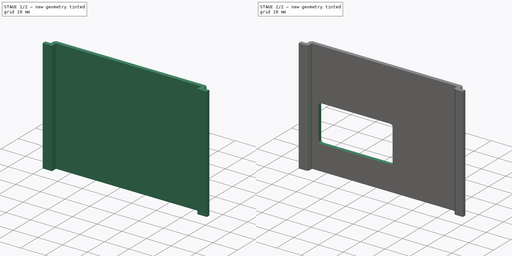
[diagram: build sequence overview — one tinted view per stage of 2, left to right]
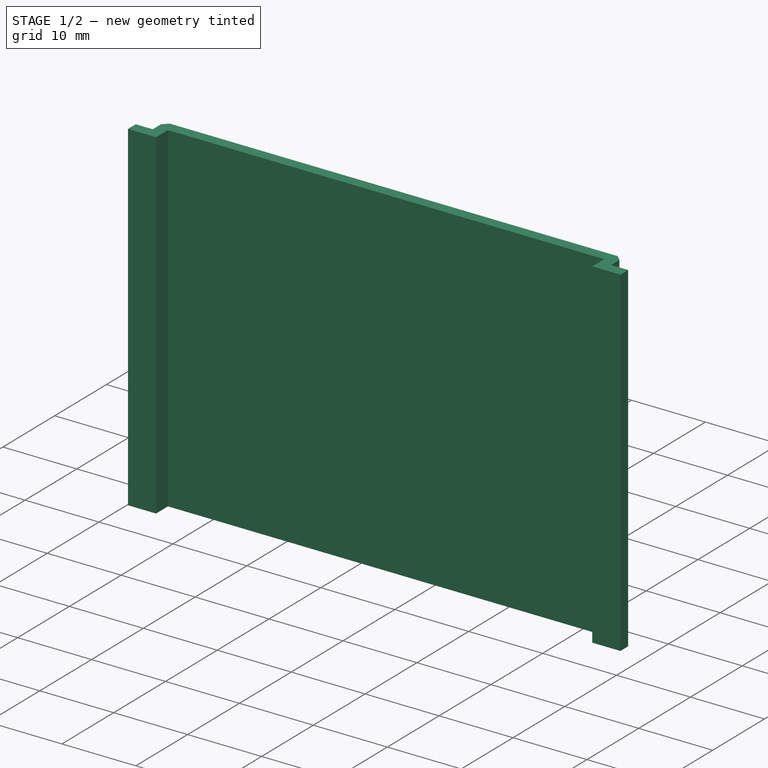
[diagram: stage 1 of 2 — iso view after this stage's code; geometry added in this stage tinted green]
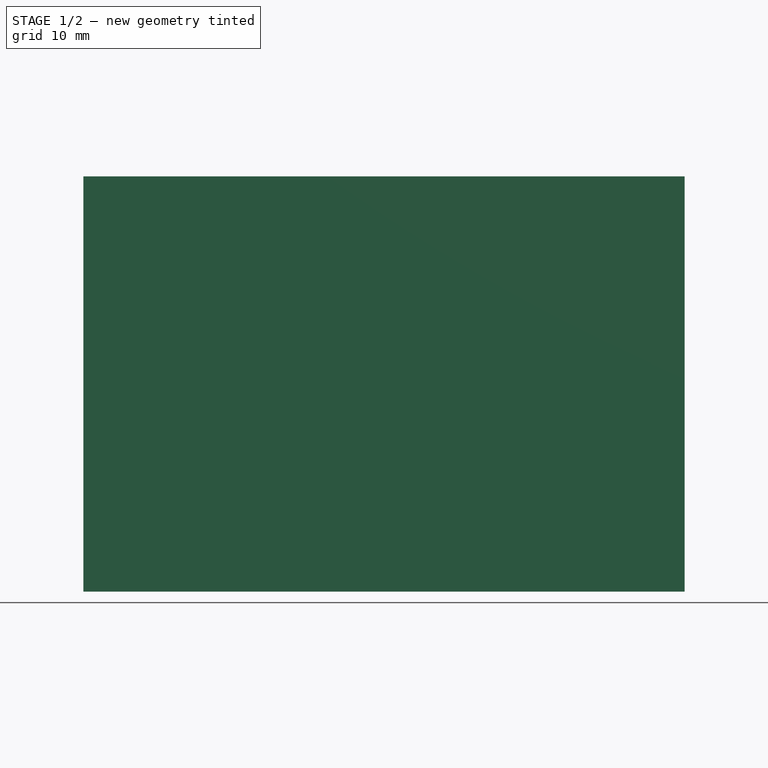
[diagram: stage 1 of 2 — front view after this stage's code; geometry added in this stage tinted green]
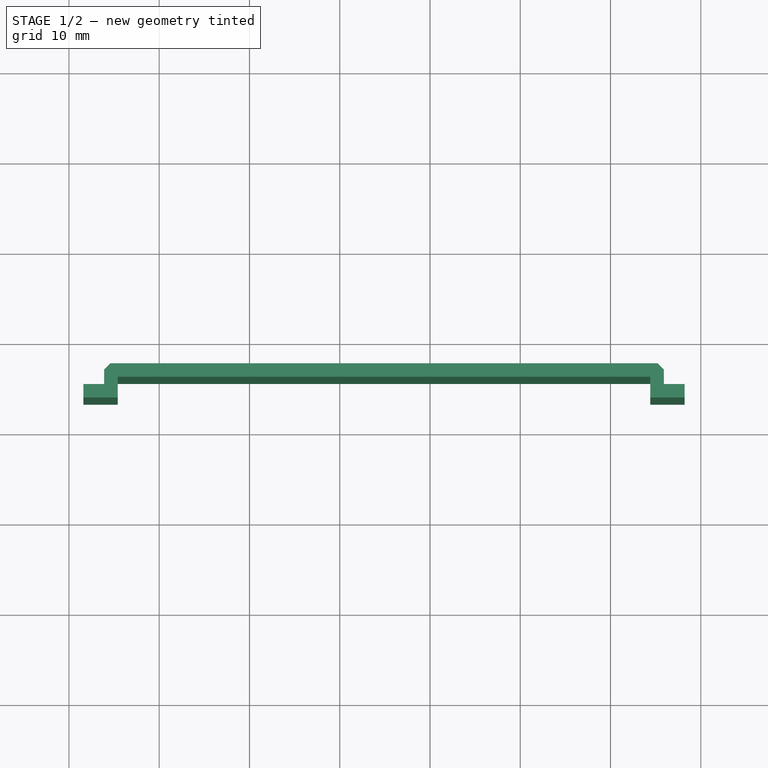
[diagram: stage 1 of 2 — top view after this stage's code; geometry added in this stage tinted green]
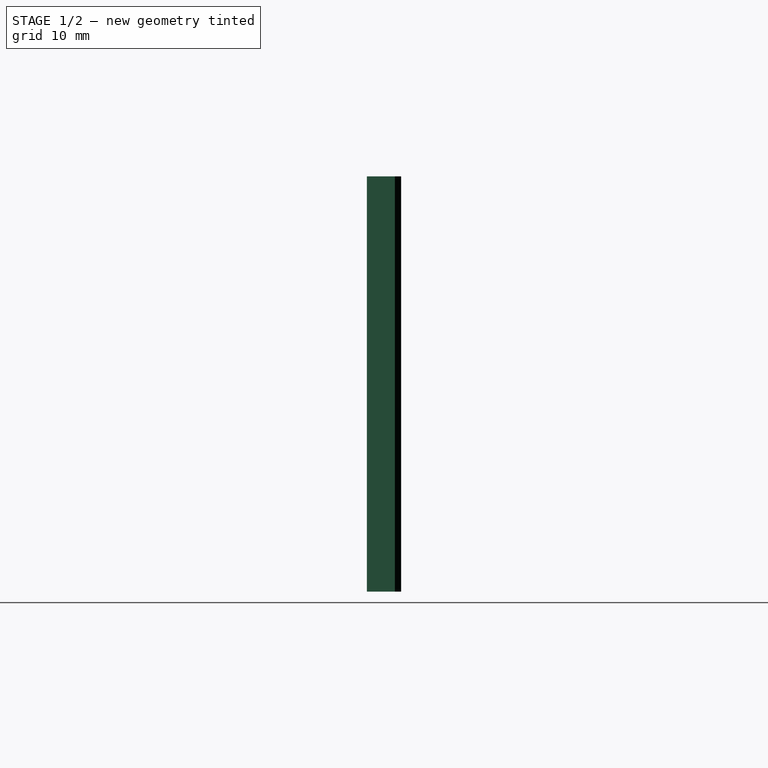
[diagram: stage 1 of 2 — right view after this stage's code; geometry added in this stage tinted green]
FCSTD DOCUMENT  (FreeCAD 0.19R24267 +148 (Git))
Label: LiulinDetectorPlate
License: All rights reserved
LicenseURL: http://en.wikipedia.org/wiki/All_rights_reserved
objects: Sketcher::SketchObject×2, PartDesign::Pad×1, PartDesign::Chamfer×1, PartDesign::Fillet×1, PartDesign::Pocket×1, PartDesign::Body×1
note: 11 computed .brp shape members not serialized (recipe doc carries the construction recipe); baked Part::Feature solids carry a one-line shape summary decoded from their .brp

FEATURE [Sketcher::SketchObject] Sketch
  FullyConstrained = false
  MapMode = 5
  Support = -> [XY_Plane]
  sketch-geometry (12):
    g0: LineSegment StartX=-26.096 StartY=27.1074 StartZ=0 EndX=35.904 EndY=27.1074 EndZ=0
    g1: LineSegment StartX=35.904 StartY=27.1074 StartZ=0 EndX=35.904 EndY=24.8074 EndZ=0
    g2: LineSegment StartX=35.904 StartY=24.8074 StartZ=0 EndX=38.204 EndY=24.8074 EndZ=0
    g3: LineSegment StartX=38.204 StartY=24.8074 StartZ=0 EndX=38.204 EndY=23.3074 EndZ=0
    g4: LineSegment StartX=38.204 StartY=23.3074 StartZ=0 EndX=34.404 EndY=23.3074 EndZ=0
    g5: LineSegment StartX=34.404 StartY=23.3074 StartZ=0 EndX=34.404 EndY=25.6074 EndZ=0
    g6: LineSegment StartX=34.404 StartY=25.6074 StartZ=0 EndX=-24.596 EndY=25.6074 EndZ=0
    g7: LineSegment StartX=-24.596 StartY=25.6074 StartZ=0 EndX=-24.596 EndY=23.3074 EndZ=0
    g8: LineSegment StartX=-24.596 StartY=23.3074 StartZ=0 EndX=-28.396 EndY=23.3074 EndZ=0
    g9: LineSegment StartX=-28.396 StartY=23.3074 StartZ=0 EndX=-28.396 EndY=24.8074 EndZ=0
    g10: LineSegment StartX=-28.396 StartY=24.8074 StartZ=0 EndX=-26.096 EndY=24.8074 EndZ=0
    g11: LineSegment StartX=-26.096 StartY=24.8074 StartZ=0 EndX=-26.096 EndY=27.1074 EndZ=0
  constraints (34):
    c: Horizontal(g0)
    c: Coincident(g0,g1)
    c: Vertical(g1)
    c: Coincident(g1,g2)
    c: Horizontal(g2)
    c: Coincident(g2,g3)
    c: Vertical(g3)
    c: Coincident(g3,g4)
    c: Horizontal(g4)
    c: Coincident(g4,g5)
    c: Vertical(g5)
    c: Coincident(g5,g6)
    c: Horizontal(g6)
    c: Coincident(g6,g7)
    c: Vertical(g7)
    c: Coincident(g7,g8)
    c: Horizontal(g8)
    c: Coincident(g8,g9)
    c: Coincident(g9,g10)
    c: Horizontal(g10)
    c: Coincident(g10,g11)
    c: Coincident(g11,g0)
    c: Vertical(g11)
    c: DistanceX(g0,g0) = 62
    c: DistanceX(g6,g5) = 59
    c: Vertical(g9)
    c: DistanceY(g6,g0) = 1.5
    c: DistanceX(g10,g7) = 1.5
    c: DistanceY(g8,g9) = 1.5
    c: DistanceY(g3,g2) = 1.5
    c: DistanceX(g8,g7) = 3.8
    c: DistanceX(g4,g3) = 3.8
    c: DistanceY(g3,g0) = 3.8
    c: DistanceY(g7,g0) = 3.8
FEATURE [PartDesign::Pad] Pad
  Direction = (1,1,1)
  Length = 46
  Length2 = 100
  Profile = -> Sketch
  Type = 0
FEATURE [PartDesign::Chamfer] Chamfer
  Angle = 45
  Base = -> Pad [Edge2,Edge1]
  BaseFeature = -> Pad
  ChamferType = 0
  FlipDirection = false
  Size = 0.7
  Size2 = 1
  SupportTransform = false
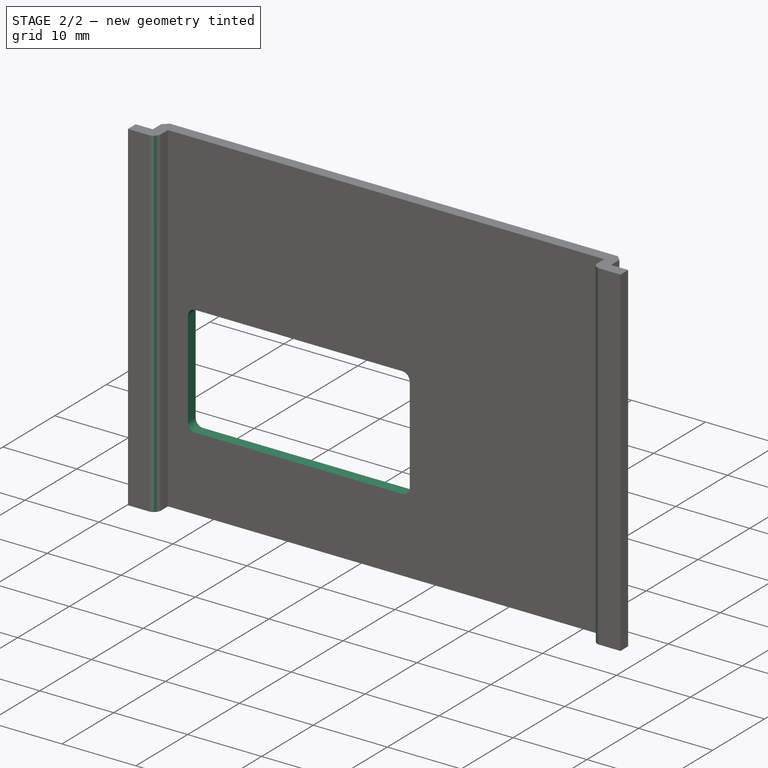
[diagram: stage 2 of 2 — iso view after this stage's code; geometry added in this stage tinted green]
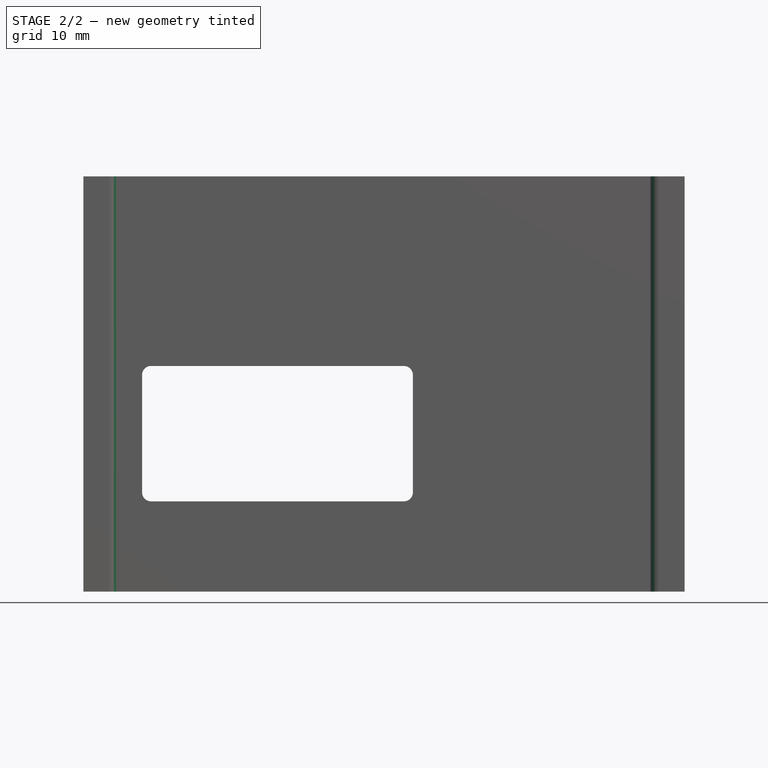
[diagram: stage 2 of 2 — front view after this stage's code; geometry added in this stage tinted green]
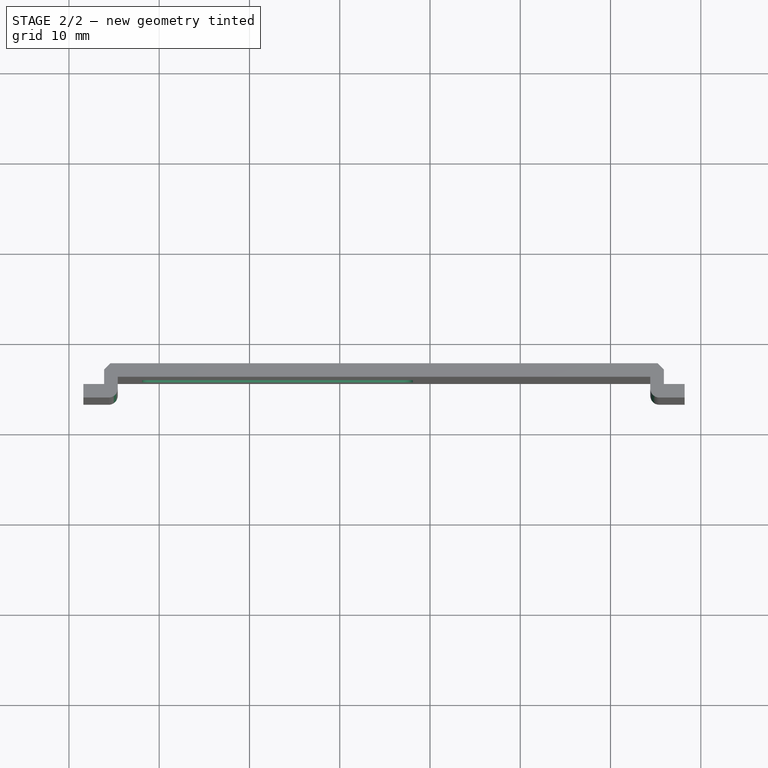
[diagram: stage 2 of 2 — top view after this stage's code; geometry added in this stage tinted green]
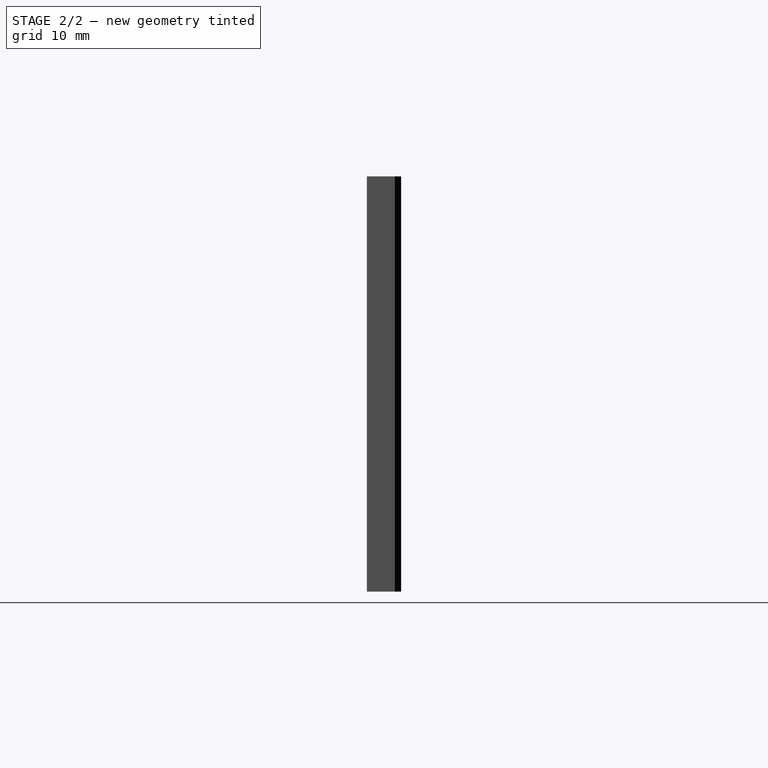
[diagram: stage 2 of 2 — right view after this stage's code; geometry added in this stage tinted green]
FEATURE [PartDesign::Fillet] Fillet
  Base = -> Chamfer [Edge39,Edge40]
  BaseFeature = -> Chamfer
  Radius = 1
  SupportTransform = false
FEATURE [Sketcher::SketchObject] Sketch001
  ExternalGeometry = -> [Fillet]
  FullyConstrained = true
  MapMode = 5
  Placement = pos=(0,27.1074,0) rot=(0,0.707107,0.707107;3.14159rad)
  Support = -> [Fillet]
  sketch-geometry (8):
    g0: LineSegment StartX=20.896 StartY=25 StartZ=0 EndX=-7.10405 EndY=25 EndZ=0
    g1: LineSegment StartX=-8.10405 StartY=24 StartZ=0 EndX=-8.10405 EndY=11 EndZ=0
    g2: LineSegment StartX=-7.10405 StartY=10 StartZ=0 EndX=20.896 EndY=10 EndZ=0
    g3: LineSegment StartX=21.896 StartY=11 StartZ=0 EndX=21.896 EndY=24 EndZ=0
    g4: ArcOfCircle CenterX=-7.10405 CenterY=24 CenterZ=0 NormalX=0 NormalY=0 NormalZ=1 AngleXU=0 Radius=1 StartAngle=1.5708 EndAngle=3.14159
    g5: ArcOfCircle CenterX=20.896 CenterY=24 CenterZ=0 NormalX=0 NormalY=0 NormalZ=1 AngleXU=0 Radius=1 StartAngle=1.7e-15 EndAngle=1.5708
    g6: ArcOfCircle CenterX=20.896 CenterY=11 CenterZ=0 NormalX=0 NormalY=0 NormalZ=1 AngleXU=0 Radius=1 StartAngle=4.71239 EndAngle=6.28319
    g7: ArcOfCircle CenterX=-7.10405 CenterY=11 CenterZ=0 NormalX=0 NormalY=0 NormalZ=1 AngleXU=0 Radius=1 StartAngle=3.14159 EndAngle=4.71239
  constraints (20):
    c: Horizontal(g0)
    c: Horizontal(g2)
    c: Vertical(g1)
    c: Vertical(g3)
    c: Tangent(g0,g4) = -1.5708
    c: Tangent(g1,g4) = -1.5708
    c: Tangent(g0,g5) = -1.5708
    c: Tangent(g3,g5) = -1.5708
    c: Tangent(g3,g6) = -1.5708
    c: Tangent(g2,g6) = -1.5708
    c: Tangent(g1,g7) = -1.5708
    c: Tangent(g2,g7) = -1.5708
    c: Radius(g4) = 1
    c: Equal(g4,g5)
    c: Equal(g5,g6)
    c: Equal(g6,g7)
    c: DistanceY(g2,g0) = 15
    c: DistanceX(g1,g3) = 30
    c: DistanceX(g3,g-3) = 6.5
    c: Distance(g2,g-4) = 36
FEATURE [PartDesign::Pocket] Pocket
  BaseFeature = -> Fillet
  Length = 2
  Length2 = 100
  Profile = -> Sketch001
  Type = 0
FEATURE [PartDesign::Body] Body
  Group = -> [Sketch,Pad,Chamfer,Fillet,Sketch001,Pocket]
  Origin = -> Origin
  Tip = -> Pocket
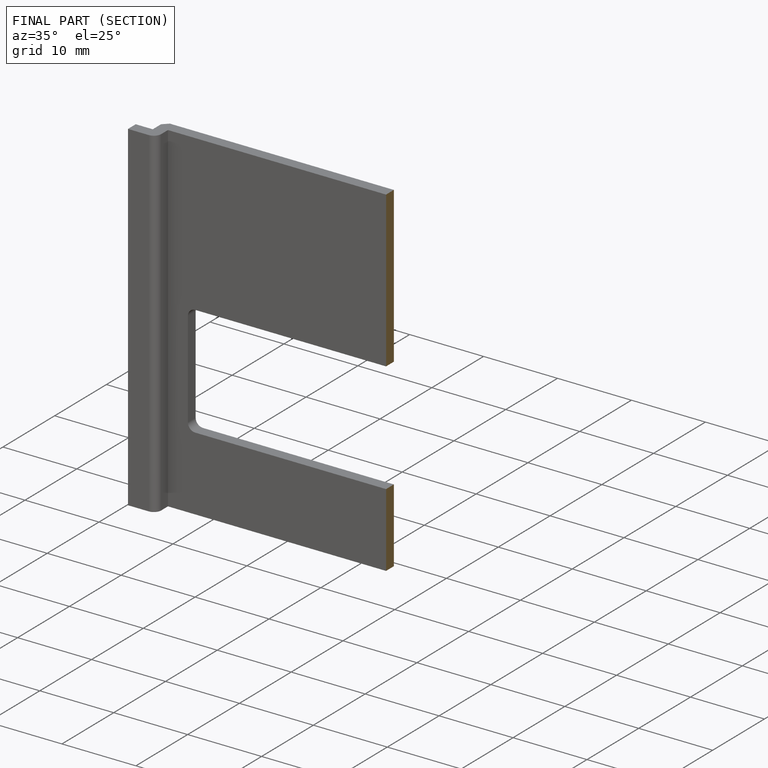
[diagram: finished part — half-section view (interior)]
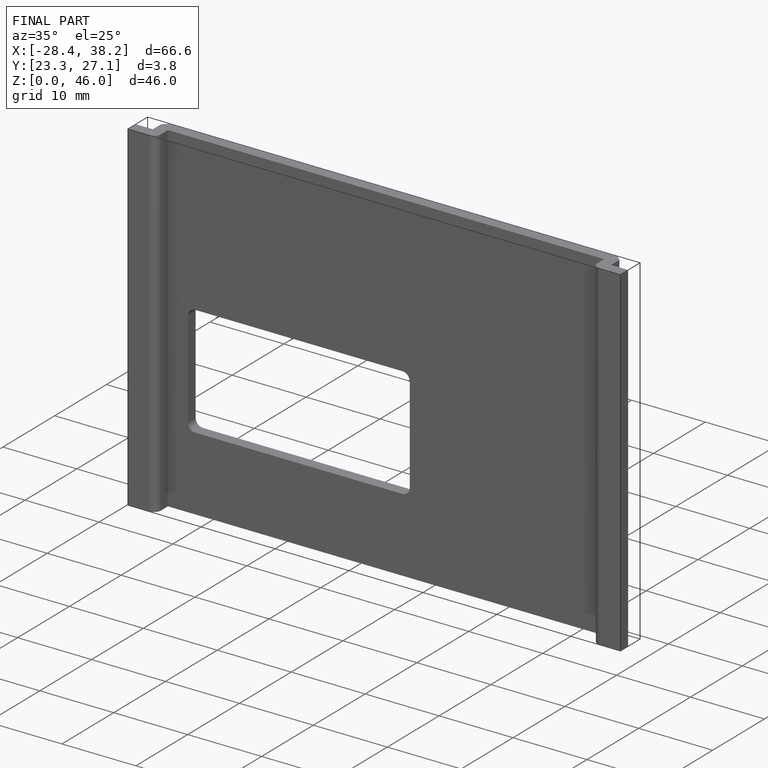
[diagram: finished part — iso view with bounding-box wireframe]
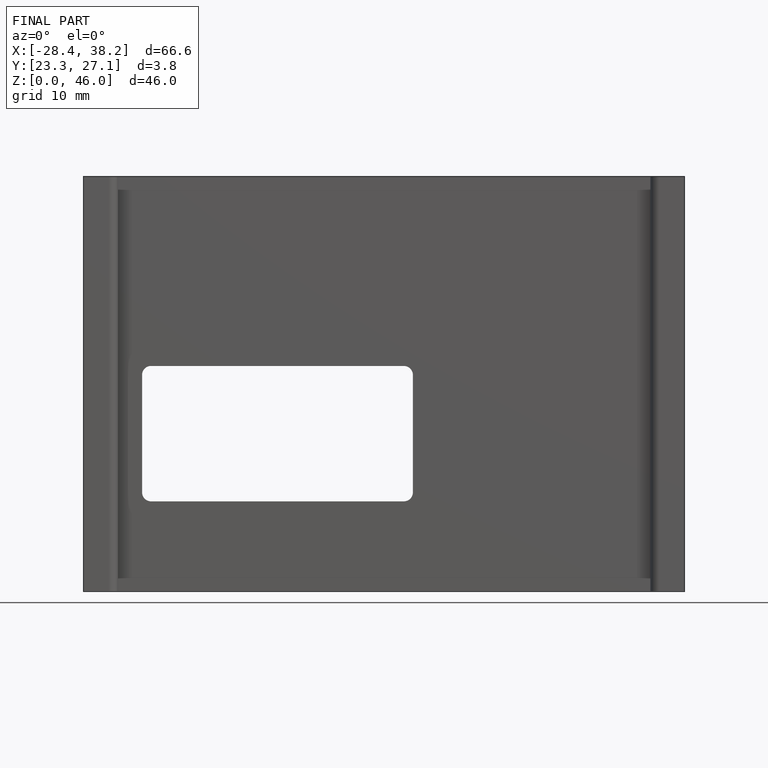
[diagram: finished part — front view with bounding-box wireframe]
